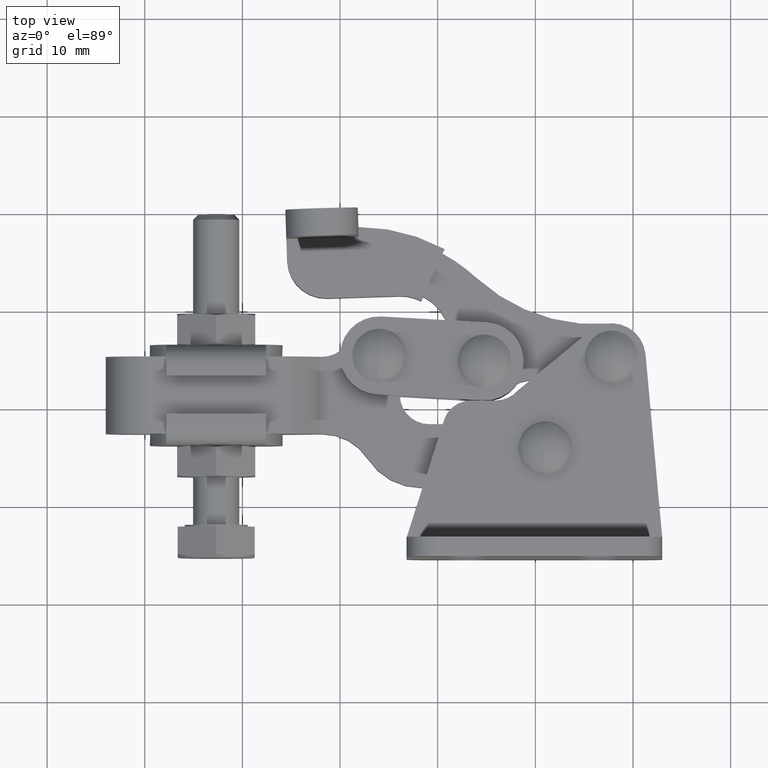
[diagram: clean part render]
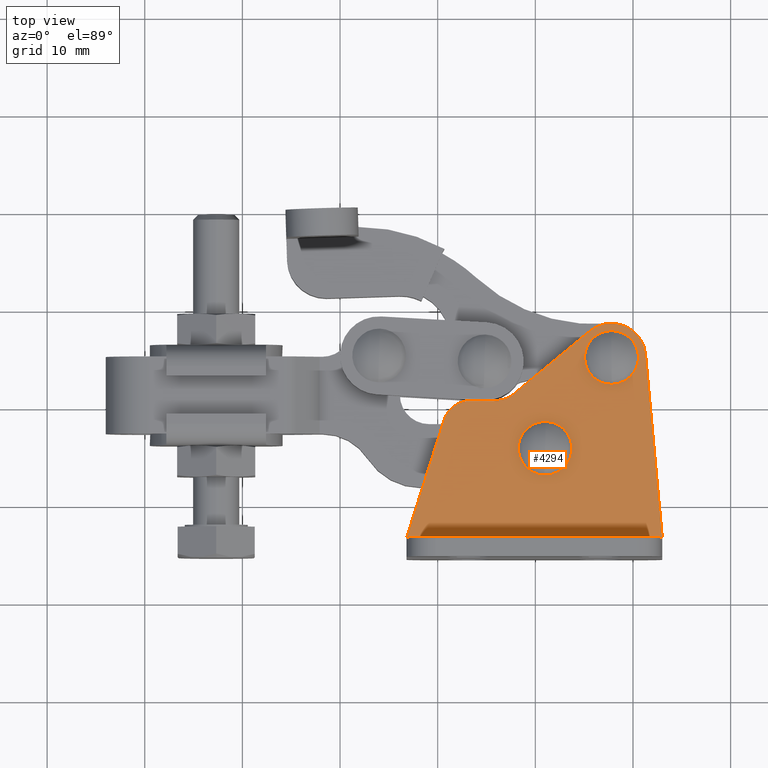
[diagram: same view with one face highlighted and labeled with its STEP entity id]
A machine part, top view. The second image highlights one B-rep face of the part: STEP entity #4294.
In plain terms, the highlighted planar face has unit normal (0, 0, 1).
Its self-contained STEP definition (entity closure, byte-faithful):
#16 = DIRECTION ( 'NONE',  ( 1.000000000000000000, 0.0000000000000000000, 0.0000000000000000000 ) ) ;
#225 = VERTEX_POINT ( 'NONE', #8085 ) ;
#636 = VERTEX_POINT ( 'NONE', #5516 ) ;
#675 = ORIENTED_EDGE ( 'NONE', *, *, #1341, .T. ) ;
#680 = ORIENTED_EDGE ( 'NONE', *, *, #4476, .T. ) ;
#689 = VERTEX_POINT ( 'NONE', #8177 ) ;
#841 = DIRECTION ( 'NONE',  ( 1.000000000000000000, 0.0000000000000000000, 0.0000000000000000000 ) ) ;
#944 = DIRECTION ( 'NONE',  ( 3.469446951953614200E-018, -1.040834085586084300E-017, 1.000000000000000000 ) ) ;
#956 = EDGE_CURVE ( 'NONE', #225, #5250, #7914, .T. ) ;
#1012 = CARTESIAN_POINT ( 'NONE',  ( -16.47794748430758800, 17.69999999999991800, 2.000000000000001800 ) ) ;
#1023 = CARTESIAN_POINT ( 'NONE',  ( -2.197947484307571900, 6.499999999999913800, 2.000000000000001800 ) ) ;
#1032 = ORIENTED_EDGE ( 'NONE', *, *, #5327, .F. ) ;
#1035 = AXIS2_PLACEMENT_3D ( 'NONE', #1716, #944, #5603 ) ;
#1064 = EDGE_CURVE ( 'NONE', #5250, #225, #4177, .T. ) ;
#1146 = CARTESIAN_POINT ( 'NONE',  ( -2.197947484307571900, 24.99999999999991800, 2.000000000000001800 ) ) ;
#1285 = CIRCLE ( 'NONE', #3610, 3.499999999999989800 ) ;
#1340 = CARTESIAN_POINT ( 'NONE',  ( -12.06735289522470300, 21.38707364661827300, 2.000000000000001800 ) ) ;
#1341 = EDGE_CURVE ( 'NONE', #5083, #1796, #9462, .T. ) ;
#1520 = VERTEX_POINT ( 'NONE', #5023 ) ;
#1716 = CARTESIAN_POINT ( 'NONE',  ( -8.997947484307545100, 15.69999999999991600, 2.000000000000001800 ) ) ;
#1787 = DIRECTION ( 'NONE',  ( 1.000000000000000000, 0.0000000000000000000, 0.0000000000000000000 ) ) ;
#1796 = VERTEX_POINT ( 'NONE', #2223 ) ;
#1919 = EDGE_CURVE ( 'NONE', #3791, #1796, #8274, .T. ) ;
#2074 = DIRECTION ( 'NONE',  ( 1.000000000000000000, 0.0000000000000000000, 0.0000000000000000000 ) ) ;
#2080 = EDGE_CURVE ( 'NONE', #3791, #7030, #3702, .T. ) ;
#2223 = CARTESIAN_POINT ( 'NONE',  ( -23.19794748430759100, 6.499999999999915600, 2.000000000000001800 ) ) ;
#2356 = DIRECTION ( 'NONE',  ( 0.0000000000000000000, 0.0000000000000000000, 1.000000000000000000 ) ) ;
#2433 = ORIENTED_EDGE ( 'NONE', *, *, #4871, .T. ) ;
#2475 = VERTEX_POINT ( 'NONE', #9829 ) ;
#2566 = VERTEX_POINT ( 'NONE', #8541 ) ;
#2694 = AXIS2_PLACEMENT_3D ( 'NONE', #3809, #3135, #2074 ) ;
#2824 = CARTESIAN_POINT ( 'NONE',  ( -23.19794748430759100, 6.499999999999915600, 2.000000000000001800 ) ) ;
#2899 = CIRCLE ( 'NONE', #8108, 2.749999999999999100 ) ;
#2950 = VECTOR ( 'NONE', #8928, 1000.000000000000000 ) ;
#2951 = CARTESIAN_POINT ( 'NONE',  ( -19.33616753429900800, 18.61136060142333900, 2.000000000000001800 ) ) ;
#2955 = AXIS2_PLACEMENT_3D ( 'NONE', #6811, #6662, #16 ) ;
#3099 = CIRCLE ( 'NONE', #2694, 2.749999999999999100 ) ;
#3135 = DIRECTION ( 'NONE',  ( 0.0000000000000000000, 0.0000000000000000000, 1.000000000000000000 ) ) ;
#3571 = DIRECTION ( 'NONE',  ( 0.0000000000000000000, 0.0000000000000000000, 1.000000000000000000 ) ) ;
#3610 = AXIS2_PLACEMENT_3D ( 'NONE', #1146, #3571, #6839 ) ;
#3702 = LINE ( 'NONE', #7097, #7530 ) ;
#3791 = VERTEX_POINT ( 'NONE', #8430 ) ;
#3809 = CARTESIAN_POINT ( 'NONE',  ( -2.197947484307571900, 24.99999999999991800, 2.000000000000001800 ) ) ;
#4013 = CARTESIAN_POINT ( 'NONE',  ( 1.287616060985596900, 25.31756380732556600, 2.000000000000001800 ) ) ;
#4119 = CARTESIAN_POINT ( 'NONE',  ( -8.924528965462535300, 18.44901977459059600, 2.000000000000001800 ) ) ;
#4177 = CIRCLE ( 'NONE', #7241, 2.749999999999999600 ) ;
#4234 = ORIENTED_EDGE ( 'NONE', *, *, #1919, .F. ) ;
#4294 = ADVANCED_FACE ( 'NONE', ( #8927, #5086, #9160 ), #8758, .T. ) ;
#4298 = CARTESIAN_POINT ( 'NONE',  ( -14.05635242626263100, 20.59242449968174400, 2.000000000000001800 ) ) ;
#4414 = EDGE_CURVE ( 'NONE', #9793, #1520, #7455, .T. ) ;
#4476 = EDGE_CURVE ( 'NONE', #2475, #1520, #5203, .T. ) ;
#4592 = EDGE_CURVE ( 'NONE', #689, #636, #2899, .T. ) ;
#4819 = DIRECTION ( 'NONE',  ( -0.0000000000000000000, -0.0000000000000000000, -1.000000000000000000 ) ) ;
#4871 = EDGE_CURVE ( 'NONE', #7030, #2475, #1285, .T. ) ;
#4880 = DIRECTION ( 'NONE',  ( 0.9996435543966115700, -0.02669764321636756600, 0.0000000000000000000 ) ) ;
#4957 = CARTESIAN_POINT ( 'NONE',  ( -2.197947484307571900, 24.99999999999991800, 2.000000000000001800 ) ) ;
#5023 = CARTESIAN_POINT ( 'NONE',  ( -11.82463536957600800, 21.58757064493470400, 2.000000000000001800 ) ) ;
#5083 = VERTEX_POINT ( 'NONE', #2951 ) ;
#5086 = FACE_BOUND ( 'NONE', #8767, .T. ) ;
#5203 = LINE ( 'NONE', #1340, #6977 ) ;
#5250 = VERTEX_POINT ( 'NONE', #4119 ) ;
#5327 = EDGE_CURVE ( 'NONE', #636, #689, #3099, .T. ) ;
#5400 = VECTOR ( 'NONE', #9100, 1000.000000000000200 ) ;
#5419 = CARTESIAN_POINT ( 'NONE',  ( -2.197947484307571900, 24.99999999999991800, 2.000000000000001800 ) ) ;
#5492 = DIRECTION ( 'NONE',  ( -1.000000000000000000, 0.0000000000000000000, 0.0000000000000000000 ) ) ;
#5498 = AXIS2_PLACEMENT_3D ( 'NONE', #1012, #6434, #1787 ) ;
#5516 = CARTESIAN_POINT ( 'NONE',  ( -2.175817922767144400, 22.25008904098578500, 2.000000000000001800 ) ) ;
#5603 = DIRECTION ( 'NONE',  ( 0.9996435543966115700, -0.02669764321636756600, 0.0000000000000000000 ) ) ;
#5688 = EDGE_CURVE ( 'NONE', #8466, #2566, #7766, .T. ) ;
#6113 = EDGE_LOOP ( 'NONE', ( #6512, #8787, #8417, #8425, #675, #4234, #6314, #2433, #680 ) ) ;
#6225 = VECTOR ( 'NONE', #5492, 1000.000000000000000 ) ;
#6275 = DIRECTION ( 'NONE',  ( -0.7709754511272124400, -0.6368648630276216900, -0.0000000000000000000 ) ) ;
#6314 = ORIENTED_EDGE ( 'NONE', *, *, #2080, .T. ) ;
#6434 = DIRECTION ( 'NONE',  ( 0.0000000000000000000, 0.0000000000000000000, 1.000000000000000000 ) ) ;
#6512 = ORIENTED_EDGE ( 'NONE', *, *, #4414, .F. ) ;
#6538 = ORIENTED_EDGE ( 'NONE', *, *, #4592, .F. ) ;
#6662 = DIRECTION ( 'NONE',  ( 0.0000000000000000000, 0.0000000000000000000, 1.000000000000000000 ) ) ;
#6802 = EDGE_LOOP ( 'NONE', ( #6538, #1032 ) ) ;
#6811 = CARTESIAN_POINT ( 'NONE',  ( -14.05635242626263100, 23.59242449968176900, 2.000000000000001800 ) ) ;
#6839 = DIRECTION ( 'NONE',  ( 1.000000000000000000, 0.0000000000000000000, 0.0000000000000000000 ) ) ;
#6977 = VECTOR ( 'NONE', #6275, 1000.000000000000000 ) ;
#7030 = VERTEX_POINT ( 'NONE', #4013 ) ;
#7097 = CARTESIAN_POINT ( 'NONE',  ( 3.002052515692410500, 6.499999999999915600, 2.000000000000001800 ) ) ;
#7182 = DIRECTION ( 'NONE',  ( 3.469446951953614200E-018, -1.040834085586084300E-017, 1.000000000000000000 ) ) ;
#7220 = EDGE_CURVE ( 'NONE', #2566, #9793, #9090, .T. ) ;
#7241 = AXIS2_PLACEMENT_3D ( 'NONE', #8822, #7182, #4880 ) ;
#7243 = AXIS2_PLACEMENT_3D ( 'NONE', #4957, #2356, #8986 ) ;
#7447 = ORIENTED_EDGE ( 'NONE', *, *, #956, .F. ) ;
#7455 = CIRCLE ( 'NONE', #2955, 3.000000000000025300 ) ;
#7465 = AXIS2_PLACEMENT_3D ( 'NONE', #7680, #4819, #841 ) ;
#7530 = VECTOR ( 'NONE', #9568, 1000.000000000000200 ) ;
#7680 = CARTESIAN_POINT ( 'NONE',  ( -16.55635242626263400, 17.59242449968175800, 2.000000000000001800 ) ) ;
#7766 = CIRCLE ( 'NONE', #7465, 2.999999999999978200 ) ;
#7914 = CIRCLE ( 'NONE', #1035, 2.749999999999999600 ) ;
#7918 = CIRCLE ( 'NONE', #5498, 2.999999999999995600 ) ;
#8085 = CARTESIAN_POINT ( 'NONE',  ( -9.071366003152553100, 12.95098022540923400, 2.000000000000001800 ) ) ;
#8108 = AXIS2_PLACEMENT_3D ( 'NONE', #5419, #8825, #8774 ) ;
#8177 = CARTESIAN_POINT ( 'NONE',  ( -2.220077045847999900, 27.74991095901405200, 2.000000000000001800 ) ) ;
#8274 = LINE ( 'NONE', #1023, #6225 ) ;
#8417 = ORIENTED_EDGE ( 'NONE', *, *, #5688, .F. ) ;
#8425 = ORIENTED_EDGE ( 'NONE', *, *, #8872, .T. ) ;
#8430 = CARTESIAN_POINT ( 'NONE',  ( 3.002052515692410500, 6.499999999999915600, 2.000000000000001800 ) ) ;
#8466 = VERTEX_POINT ( 'NONE', #8708 ) ;
#8524 = CARTESIAN_POINT ( 'NONE',  ( -14.05635242626263100, 20.59242449968174400, 2.000000000000001800 ) ) ;
#8541 = CARTESIAN_POINT ( 'NONE',  ( -16.55635242626263400, 20.59242449968174400, 2.000000000000001800 ) ) ;
#8708 = CARTESIAN_POINT ( 'NONE',  ( -18.94095691004044100, 19.41277102052514900, 2.000000000000001800 ) ) ;
#8758 = PLANE ( 'NONE',  #7243 ) ;
#8765 = ORIENTED_EDGE ( 'NONE', *, *, #1064, .F. ) ;
#8767 = EDGE_LOOP ( 'NONE', ( #8765, #7447 ) ) ;
#8774 = DIRECTION ( 'NONE',  ( 1.000000000000000000, 0.0000000000000000000, 0.0000000000000000000 ) ) ;
#8787 = ORIENTED_EDGE ( 'NONE', *, *, #7220, .F. ) ;
#8822 = CARTESIAN_POINT ( 'NONE',  ( -8.997947484307545100, 15.69999999999991600, 2.000000000000001800 ) ) ;
#8825 = DIRECTION ( 'NONE',  ( 0.0000000000000000000, 0.0000000000000000000, 1.000000000000000000 ) ) ;
#8872 = EDGE_CURVE ( 'NONE', #8466, #5083, #7918, .T. ) ;
#8927 = FACE_BOUND ( 'NONE', #6802, .T. ) ;
#8928 = DIRECTION ( 'NONE',  ( 1.000000000000000000, -0.0000000000000000000, -0.0000000000000000000 ) ) ;
#8986 = DIRECTION ( 'NONE',  ( 1.000000000000000000, 0.0000000000000000000, -0.0000000000000000000 ) ) ;
#9090 = LINE ( 'NONE', #4298, #2950 ) ;
#9100 = DIRECTION ( 'NONE',  ( -0.3037868671411487800, -0.9527400166638146900, -0.0000000000000000000 ) ) ;
#9160 = FACE_OUTER_BOUND ( 'NONE', #6113, .T. ) ;
#9462 = LINE ( 'NONE', #2824, #5400 ) ;
#9568 = DIRECTION ( 'NONE',  ( -0.09073251637875838500, 0.9958752986551971900, 0.0000000000000000000 ) ) ;
#9793 = VERTEX_POINT ( 'NONE', #8524 ) ;
#9829 = CARTESIAN_POINT ( 'NONE',  ( -4.426974504904257500, 27.69841407894515200, 2.000000000000001800 ) ) ;